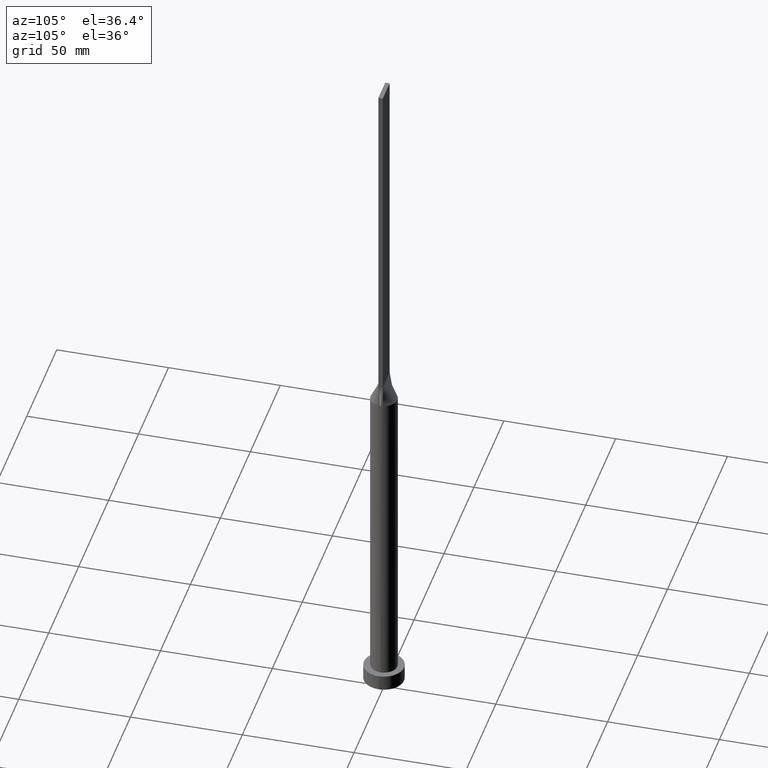
[diagram: clean part render]
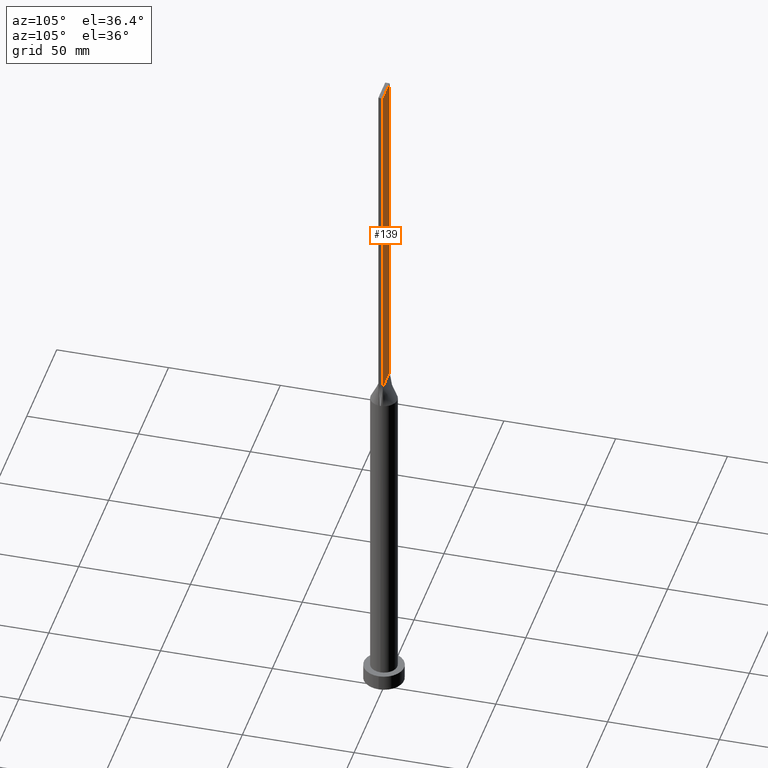
[diagram: same view with one face highlighted and labeled with its STEP entity id]
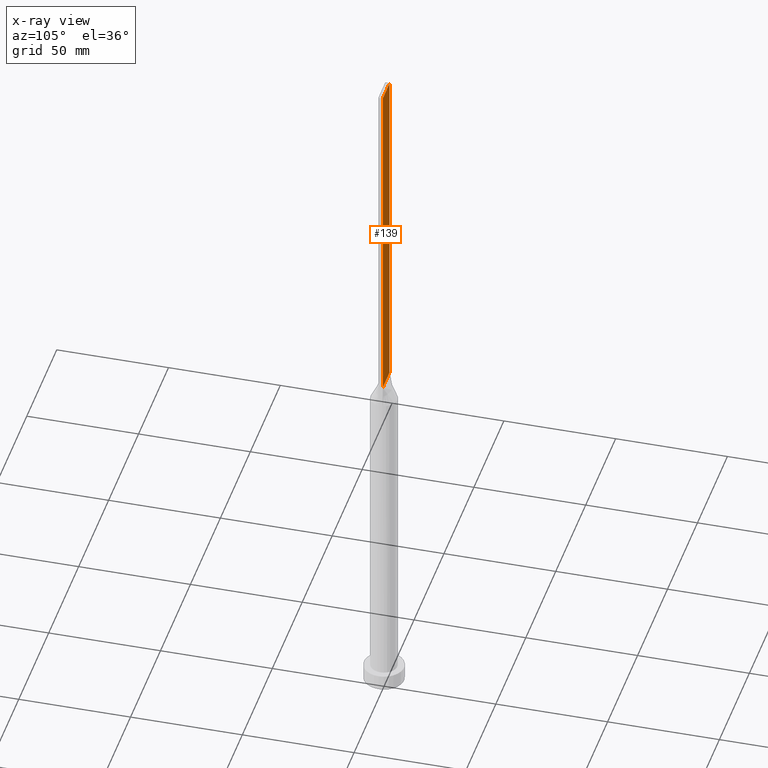
[diagram: x-ray of the same camera — body ghosted, the highlighted face saturated]
A machine part, auxiliary view. The second image highlights one B-rep face of the part: STEP entity #139.
The next image is the same camera in x-ray: the body ghosted, the highlighted face saturated — about 0% of this face is hidden behind the body in this view.
In plain terms, the highlighted planar face has unit normal (0, -1, 0).
Its self-contained STEP definition (entity closure, byte-faithful):
#20 = CARTESIAN_POINT ( 'NONE',  ( 5.750000000000000000, 1.000000000000000000, 160.0000000000000000 ) ) ;
#23 = VERTEX_POINT ( 'NONE', #30 ) ;
#30 = CARTESIAN_POINT ( 'NONE',  ( -5.750000000000000000, 1.000000000000000000, 315.0000000000000000 ) ) ;
#38 = DIRECTION ( 'NONE',  ( -0.000000000000000000, -0.000000000000000000, -1.000000000000000000 ) ) ;
#54 = AXIS2_PLACEMENT_3D ( 'NONE', #133, #523, #472 ) ;
#59 = LINE ( 'NONE', #72, #336 ) ;
#72 = CARTESIAN_POINT ( 'NONE',  ( -5.750000000000000000, 1.000000000000000000, 315.0000000000000000 ) ) ;
#92 = CARTESIAN_POINT ( 'NONE',  ( 5.750000000000000000, 1.000000000000000000, 315.0000000000000000 ) ) ;
#103 = CARTESIAN_POINT ( 'NONE',  ( -5.750000000000000000, 1.000000000000000000, 160.0000000000000000 ) ) ;
#119 = ORIENTED_EDGE ( 'NONE', *, *, #162, .F. ) ;
#121 = EDGE_CURVE ( 'NONE', #430, #331, #275, .T. ) ;
#133 = CARTESIAN_POINT ( 'NONE',  ( 5.750000000000000000, 1.000000000000000000, 315.0000000000000000 ) ) ;
#139 = ADVANCED_FACE ( 'NONE', ( #330 ), #519, .F. ) ;
#154 = DIRECTION ( 'NONE',  ( -0.000000000000000000, -0.000000000000000000, -1.000000000000000000 ) ) ;
#162 = EDGE_CURVE ( 'NONE', #430, #23, #238, .T. ) ;
#184 = CARTESIAN_POINT ( 'NONE',  ( -5.750000000000000000, 1.000000000000000000, 160.0000000000000000 ) ) ;
#216 = VECTOR ( 'NONE', #38, 1000.000000000000000 ) ;
#236 = VECTOR ( 'NONE', #433, 1000.000000000000000 ) ;
#238 = LINE ( 'NONE', #92, #236 ) ;
#275 = LINE ( 'NONE', #468, #216 ) ;
#307 = ORIENTED_EDGE ( 'NONE', *, *, #551, .F. ) ;
#330 = FACE_OUTER_BOUND ( 'NONE', #614, .T. ) ;
#331 = VERTEX_POINT ( 'NONE', #20 ) ;
#336 = VECTOR ( 'NONE', #154, 1000.000000000000000 ) ;
#354 = VECTOR ( 'NONE', #529, 1000.000000000000000 ) ;
#378 = ORIENTED_EDGE ( 'NONE', *, *, #471, .T. ) ;
#385 = CARTESIAN_POINT ( 'NONE',  ( 5.750000000000000000, 1.000000000000000000, 315.0000000000000000 ) ) ;
#430 = VERTEX_POINT ( 'NONE', #385 ) ;
#433 = DIRECTION ( 'NONE',  ( -1.000000000000000000, 0.000000000000000000, 0.000000000000000000 ) ) ;
#468 = CARTESIAN_POINT ( 'NONE',  ( 5.750000000000000000, 1.000000000000000000, 315.0000000000000000 ) ) ;
#471 = EDGE_CURVE ( 'NONE', #331, #593, #475, .T. ) ;
#472 = DIRECTION ( 'NONE',  ( 0.000000000000000000, -0.000000000000000000, -1.000000000000000000 ) ) ;
#475 = LINE ( 'NONE', #103, #354 ) ;
#499 = ORIENTED_EDGE ( 'NONE', *, *, #121, .T. ) ;
#519 = PLANE ( 'NONE',  #54 ) ;
#523 = DIRECTION ( 'NONE',  ( 0.000000000000000000, -1.000000000000000000, 0.000000000000000000 ) ) ;
#529 = DIRECTION ( 'NONE',  ( -1.000000000000000000, -0.000000000000000000, -0.000000000000000000 ) ) ;
#551 = EDGE_CURVE ( 'NONE', #23, #593, #59, .T. ) ;
#593 = VERTEX_POINT ( 'NONE', #184 ) ;
#614 = EDGE_LOOP ( 'NONE', ( #378, #307, #119, #499 ) ) ;